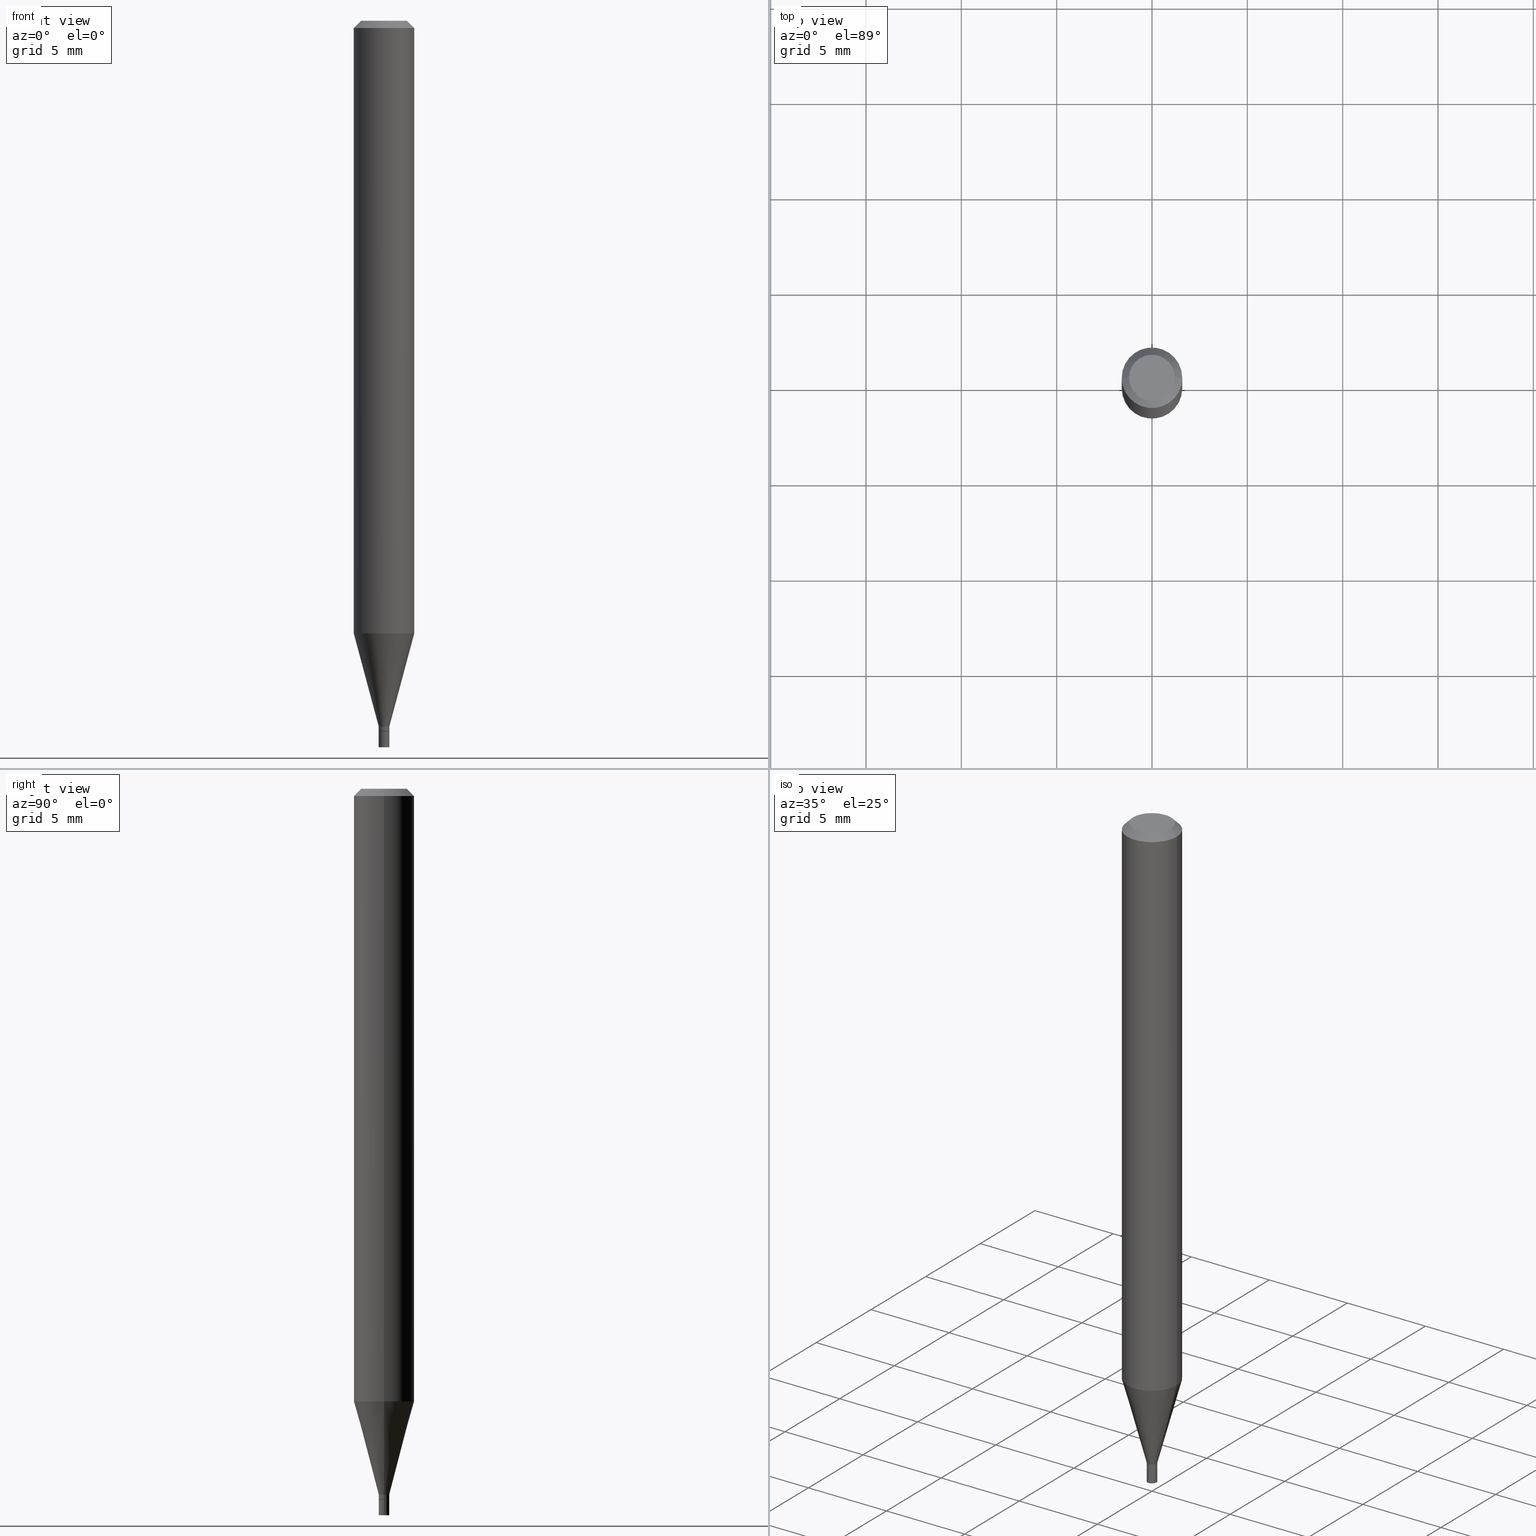
[diagram: canonical four-view strip — front | top / right | iso, engineering-drawing reading convention]
A machine part, canonical four-view strip (front | top / right | iso — engineering-drawing reading convention). The complete STEP part file that produces these views, byte-faithful:
ISO-10303-21;
HEADER;
FILE_DESCRIPTION (( 'STEP AP203' ),
    '1' );
FILE_NAME ('00389.STEP',
    '2024-03-19T21:07:45',
    ( '' ),
    ( '' ),
    'SwSTEP 2.0',
    'SolidWorks 2023',
    '' );
FILE_SCHEMA (( 'CONFIG_CONTROL_DESIGN' ));
ENDSEC;

DATA;
#1 = ADVANCED_FACE ( 'NONE', ( #44 ), #81, .T. ) ;
#2 = CARTESIAN_POINT ( 'NONE',  ( 0.04749999999999999362, -4.035134999187566790E-16, 6.443424916547846258E-16 ) ) ;
#3 = EDGE_LOOP ( 'NONE', ( #17, #55, #447, #283 ) ) ;
#4 = DIRECTION ( 'NONE',  ( 2.438088387897960049E-29, -3.491481338843145188E-15, -1.000000000000000000 ) ) ;
#5 = ORIENTED_EDGE ( 'NONE', *, *, #346, .F. ) ;
#6 = EDGE_CURVE ( 'NONE', #90, #301, #130, .T. ) ;
#7 = AXIS2_PLACEMENT_3D ( 'NONE', #432, #101, #244 ) ;
#8 = AXIS2_PLACEMENT_3D ( 'NONE', #333, #22, #86 ) ;
#9 = CARTESIAN_POINT ( 'NONE',  ( 7.681258945458479888E-17, 0.01099999999999487672, -1.467000000000000304 ) ) ;
#10 = ADVANCED_FACE ( 'NONE', ( #121 ), #53, .T. ) ;
#11 = DIRECTION ( 'NONE',  ( 1.000000000000000000, -6.982962677686265922E-15, 4.876176775795936353E-29 ) ) ;
#12 = ORIENTED_EDGE ( 'NONE', *, *, #199, .F. ) ;
#13 = ORIENTED_EDGE ( 'NONE', *, *, #204, .T. ) ;
#14 = CARTESIAN_POINT ( 'NONE',  ( 0.000000000000000000, 0.000000000000000000, 0.000000000000000000 ) ) ;
#15 = VERTEX_POINT ( 'NONE', #217 ) ;
#16 = DIRECTION ( 'NONE',  ( 1.000000000000000000, -6.982962677686287221E-15, 0.000000000000000000 ) ) ;
#17 = ORIENTED_EDGE ( 'NONE', *, *, #296, .T. ) ;
#18 = CARTESIAN_POINT ( 'NONE',  ( 3.586280004270504012E-29, -5.120257383413474282E-15, -1.466500000000000359 ) ) ;
#19 = VERTEX_POINT ( 'NONE', #316 ) ;
#20 = DATE_AND_TIME ( #340, #256 ) ;
#21 = ORIENTED_EDGE ( 'NONE', *, *, #188, .T. ) ;
#22 = DIRECTION ( 'NONE',  ( 2.438088387897960049E-29, -3.491481338843145188E-15, -1.000000000000000000 ) ) ;
#23 = CIRCLE ( 'NONE', #379, 0.06250000000000000000 ) ;
#24 = ORGANIZATION ( 'UNSPECIFIED', 'UNSPECIFIED', '' ) ;
#25 = ADVANCED_FACE ( 'NONE', ( #183 ), #147, .F. ) ;
#26 = DIRECTION ( 'NONE',  ( 0.000000000000000000, 0.000000000000000000, 1.000000000000000000 ) ) ;
#27 = DIRECTION ( 'NONE',  ( -2.445468806185136597E-29, 3.491481338843145583E-15, 1.000000000000000000 ) ) ;
#28 = EDGE_CURVE ( 'NONE', #19, #367, #149, .T. ) ;
#29 = DIRECTION ( 'NONE',  ( 1.000000000000000000, -6.982962677686245411E-15, 0.000000000000000000 ) ) ;
#30 = VERTEX_POINT ( 'NONE', #180 ) ;
#31 = COORDINATED_UNIVERSAL_TIME_OFFSET ( 5, 0, .BEHIND. ) ;
#32 = DIRECTION ( 'NONE',  ( 0.2588190451025213501, 1.565188264969621968E-15, 0.9659258262890682012 ) ) ;
#33 = ORIENTED_EDGE ( 'NONE', *, *, #250, .T. ) ;
#34 = FACE_OUTER_BOUND ( 'NONE', #52, .T. ) ;
#35 = FACE_OUTER_BOUND ( 'NONE', #272, .T. ) ;
#36 = ORIENTED_EDGE ( 'NONE', *, *, #145, .F. ) ;
#37 = AXIS2_PLACEMENT_3D ( 'NONE', #436, #324, #144 ) ;
#38 = LOCAL_TIME ( 17, 7, 45.00000000000000000, #213 ) ;
#39 = CARTESIAN_POINT ( 'NONE',  ( 0.01049999999999999892, -5.195324232198601302E-15, -1.467000000000000304 ) ) ;
#40 = CARTESIAN_POINT ( 'NONE',  ( -0.01099999999999992130, 7.815970093361046124E-17, -5.410828599280358539E-31 ) ) ;
#41 = LINE ( 'NONE', #39, #418 ) ;
#42 = EDGE_CURVE ( 'NONE', #275, #228, #293, .T. ) ;
#43 = CIRCLE ( 'NONE', #37, 0.06250000000000000000 ) ;
#44 = FACE_OUTER_BOUND ( 'NONE', #174, .T. ) ;
#45 = LINE ( 'NONE', #115, #164 ) ;
#46 = VERTEX_POINT ( 'NONE', #140 ) ;
#47 = DIRECTION ( 'NONE',  ( 1.000000000000000000, -6.982962677686295110E-15, 0.000000000000000000 ) ) ;
#48 = ORIENTED_EDGE ( 'NONE', *, *, #423, .F. ) ;
#49 = PERSON_AND_ORGANIZATION ( #441, #24 ) ;
#50 = LENGTH_MEASURE_WITH_UNIT ( LENGTH_MEASURE( 0.02539999999999999897 ), #305 );
#51 = ORIENTED_EDGE ( 'NONE', *, *, #199, .T. ) ;
#52 = EDGE_LOOP ( 'NONE', ( #36, #61, #51, #338 ) ) ;
#53 = CYLINDRICAL_SURFACE ( 'NONE', #438, 0.06250000000000000000 ) ;
#54 = PERSON_AND_ORGANIZATION_ROLE ( 'design_owner' ) ;
#55 = ORIENTED_EDGE ( 'NONE', *, *, #225, .T. ) ;
#56 = ADVANCED_FACE ( 'NONE', ( #34 ), #322, .T. ) ;
#57 = DIRECTION ( 'NONE',  ( 1.000000000000000000, 0.000000000000000000, 0.000000000000000000 ) ) ;
#58 = MANIFOLD_SOLID_BREP ( 'Body-Move/Copy2[2]', #163 ) ;
#59 = CONICAL_SURFACE ( 'NONE', #172, 0.01049999999999999892, 0.7853981633974718157 ) ;
#60 = CARTESIAN_POINT ( 'NONE',  ( -0.06250000000000000000, 3.840629472727444916E-16, -0.01499999999999999944 ) ) ;
#61 = ORIENTED_EDGE ( 'NONE', *, *, #110, .T. ) ;
#62 = DATE_TIME_ROLE ( 'creation_date' ) ;
#63 = CARTESIAN_POINT ( 'NONE',  ( 3.668203209277704895E-29, -5.237222008264718177E-15, -1.500000000000000222 ) ) ;
#64 = DIRECTION ( 'NONE',  ( 1.000000000000000000, -6.982962677686245411E-15, 0.000000000000000000 ) ) ;
#65 = VECTOR ( 'NONE', #222, 39.37007874015748143 ) ;
#66 = PERSON_AND_ORGANIZATION_ROLE ( 'classification_officer' ) ;
#67 = LINE ( 'NONE', #60, #150 ) ;
#68 = DIRECTION ( 'NONE',  ( -2.445468806185136597E-29, 3.491481338843145583E-15, 1.000000000000000000 ) ) ;
#69 = EDGE_CURVE ( 'NONE', #301, #90, #23, .T. ) ;
#70 = CARTESIAN_POINT ( 'NONE',  ( -0.01099999999999999936, -5.101452865240196680E-15, -1.467000000000000304 ) ) ;
#71 = AXIS2_PLACEMENT_3D ( 'NONE', #382, #466, #94 ) ;
#72 = EDGE_CURVE ( 'NONE', #146, #202, #143, .T. ) ;
#73 = SECURITY_CLASSIFICATION ( '', '', #171 ) ;
#74 = DIRECTION ( 'NONE',  ( -2.445468806185136597E-29, 3.491481338843145583E-15, 1.000000000000000000 ) ) ;
#75 = ORIENTED_EDGE ( 'NONE', *, *, #423, .T. ) ;
#76 = APPROVAL ( #274, 'UNSPECIFIED' ) ;
#77 = CARTESIAN_POINT ( 'NONE',  ( 0.000000000000000000, 0.000000000000000000, 0.000000000000000000 ) ) ;
#78 = DIRECTION ( 'NONE',  ( 1.000000000000000000, -6.982962677686245411E-15, 0.000000000000000000 ) ) ;
#79 = EDGE_LOOP ( 'NONE', ( #403, #21 ) ) ;
#80 = AXIS2_PLACEMENT_3D ( 'NONE', #14, #294, #155 ) ;
#81 = CYLINDRICAL_SURFACE ( 'NONE', #349, 0.01099999999999992130 ) ;
#82 = DIRECTION ( 'NONE',  ( 2.445468806185136597E-29, -3.491481338843145583E-15, -1.000000000000000000 ) ) ;
#83 = VERTEX_POINT ( 'NONE', #389 ) ;
#84 = COORDINATED_UNIVERSAL_TIME_OFFSET ( 5, 0, .BEHIND. ) ;
#85 = EDGE_CURVE ( 'NONE', #19, #30, #67, .T. ) ;
#86 = DIRECTION ( 'NONE',  ( -1.000000000000000000, 6.982962677686265922E-15, -4.876176775795935793E-29 ) ) ;
#87 = CIRCLE ( 'NONE', #439, 0.04749999999999999362 ) ;
#88 = LOCAL_TIME ( 17, 7, 45.00000000000000000, #424 ) ;
#89 = ORIENTED_EDGE ( 'NONE', *, *, #6, .T. ) ;
#90 = VERTEX_POINT ( 'NONE', #344 ) ;
#91 = ADVANCED_FACE ( 'NONE', ( #290 ), #186, .T. ) ;
#92 = CARTESIAN_POINT ( 'NONE',  ( 3.563048050611744147E-29, -5.087088310694462559E-15, -1.457000000000000073 ) ) ;
#93 = DIRECTION ( 'NONE',  ( 1.000000000000000000, -6.982962677686265922E-15, 4.876176775795935793E-29 ) ) ;
#94 = DIRECTION ( 'NONE',  ( 1.000000000000000000, -6.982962677686265922E-15, 4.876176775795936353E-29 ) ) ;
#95 = AXIS2_PLACEMENT_3D ( 'NONE', #428, #317, #64 ) ;
#96 = CALENDAR_DATE ( 2024, 19, 3 ) ;
#97 = DIRECTION ( 'NONE',  ( 1.000000000000000000, -6.982962677686265922E-15, 4.876176775795935793E-29 ) ) ;
#98 = EDGE_LOOP ( 'NONE', ( #192, #190, #179, #434 ) ) ;
#99 = DIRECTION ( 'NONE',  ( -2.445468806185136597E-29, 3.491481338843145583E-15, 1.000000000000000000 ) ) ;
#100 = PERSON_AND_ORGANIZATION_ROLE ( 'creator' ) ;
#101 = DIRECTION ( 'NONE',  ( -2.445468806185136597E-29, 3.491481338843145583E-15, 1.000000000000000000 ) ) ;
#102 = AXIS2_PLACEMENT_3D ( 'NONE', #209, #27, #386 ) ;
#103 = EDGE_CURVE ( 'NONE', #15, #397, #394, .T. ) ;
#104 = DIRECTION ( 'NONE',  ( -2.445468806185136877E-29, 3.491481338843145188E-15, 1.000000000000000000 ) ) ;
#105 = ORIENTED_EDGE ( 'NONE', *, *, #85, .T. ) ;
#106 = FACE_OUTER_BOUND ( 'NONE', #114, .T. ) ;
#107 = ORIENTED_EDGE ( 'NONE', *, *, #453, .F. ) ;
#108 = DIRECTION ( 'NONE',  ( 1.000000000000000000, -6.982962677686295110E-15, 0.000000000000000000 ) ) ;
#109 = VECTOR ( 'NONE', #337, 39.37007874015748143 ) ;
#110 = EDGE_CURVE ( 'NONE', #228, #275, #451, .T. ) ;
#111 = ADVANCED_FACE ( 'NONE', ( #319 ), #239, .T. ) ;
#112 = CARTESIAN_POINT ( 'NONE',  ( 0.000000000000000000, 0.000000000000000000, 0.000000000000000000 ) ) ;
#113 = DIRECTION ( 'NONE',  ( -2.445468806185136597E-29, 3.491481338843145583E-15, 1.000000000000000000 ) ) ;
#114 = EDGE_LOOP ( 'NONE', ( #120, #13, #359, #245 ) ) ;
#115 = CARTESIAN_POINT ( 'NONE',  ( 0.06250000000000000000, -4.811533449433679005E-16, -0.01499999999999999944 ) ) ;
#116 = EDGE_LOOP ( 'NONE', ( #157, #33, #413, #369 ) ) ;
#117 = AXIS2_PLACEMENT_3D ( 'NONE', #265, #433, #362 ) ;
#118 = EDGE_CURVE ( 'NONE', #83, #30, #402, .T. ) ;
#119 = ORIENTED_EDGE ( 'NONE', *, *, #409, .T. ) ;
#120 = ORIENTED_EDGE ( 'NONE', *, *, #188, .F. ) ;
#121 = FACE_OUTER_BOUND ( 'NONE', #368, .T. ) ;
#122 = APPLICATION_PROTOCOL_DEFINITION ( 'international standard', 'config_control_design', 1994, #210 ) ;
#123 = ORIENTED_EDGE ( 'NONE', *, *, #249, .F. ) ;
#124 = EDGE_LOOP ( 'NONE', ( #119, #258 ) ) ;
#125 = AXIS2_PLACEMENT_3D ( 'NONE', #326, #113, #47 ) ;
#126 = DIRECTION ( 'NONE',  ( -2.445468806185136597E-29, 3.491481338843145583E-15, 1.000000000000000000 ) ) ;
#127 = CC_DESIGN_APPROVAL ( #460, ( #73 ) ) ;
#128 = ORIENTED_EDGE ( 'NONE', *, *, #417, .F. ) ;
#129 = LINE ( 'NONE', #415, #109 ) ;
#130 = CIRCLE ( 'NONE', #193, 0.06250000000000000000 ) ;
#131 = DATE_AND_TIME ( #427, #88 ) ;
#132 = VECTOR ( 'NONE', #318, 39.37007874015748143 ) ;
#133 = CARTESIAN_POINT ( 'NONE',  ( 0.01099999999999992130, -5.197069972868022806E-15, -1.466500000000000359 ) ) ;
#134 = CONICAL_SURFACE ( 'NONE', #457, 0.06250000000000000000, 0.7853981633974268517 ) ;
#135 = APPROVAL_DATE_TIME ( #350, #289 ) ;
#136 = CARTESIAN_POINT ( 'NONE',  ( 3.563048050611744147E-29, -5.087088310694462559E-15, -1.457000000000000073 ) ) ;
#137 = DIRECTION ( 'NONE',  ( -0.7071067811865323627, 2.468850131082098105E-15, -0.7071067811865626718 ) ) ;
#138 = EDGE_CURVE ( 'NONE', #202, #90, #430, .T. ) ;
#139 = SHAPE_DEFINITION_REPRESENTATION ( #414, #419 ) ;
#140 = CARTESIAN_POINT ( 'NONE',  ( -0.01099999999999992130, -4.490431422233914869E-15, -1.457000000000000073 ) ) ;
#141 = CIRCLE ( 'NONE', #261, 0.01099999999999999936 ) ;
#142 = APPROVAL_PERSON_ORGANIZATION ( #421, #460, #167 ) ;
#143 = LINE ( 'NONE', #352, #158 ) ;
#144 = DIRECTION ( 'NONE',  ( 1.000000000000000000, -6.982962677686266711E-15, 0.000000000000000000 ) ) ;
#145 = EDGE_CURVE ( 'NONE', #228, #267, #176, .T. ) ;
#146 = VERTEX_POINT ( 'NONE', #133 ) ;
#147 = PLANE ( 'NONE',  #170 ) ;
#148 = DIRECTION ( 'NONE',  ( -1.000000000000000000, 6.982962677686265922E-15, -4.876176775795935793E-29 ) ) ;
#149 = CIRCLE ( 'NONE', #7, 0.04749999999999999362 ) ;
#150 = VECTOR ( 'NONE', #137, 39.37007874015748143 ) ;
#151 = CARTESIAN_POINT ( 'NONE',  ( -0.06250000000000000000, -3.971934234706977480E-15, -1.264799383410203149 ) ) ;
#152 = CARTESIAN_POINT ( 'NONE',  ( 0.01099999999999999936, -5.314034597719267489E-15, -1.500000000000000222 ) ) ;
#153 = DIRECTION ( 'NONE',  ( -2.445468806185136597E-29, 3.491481338843145583E-15, 1.000000000000000000 ) ) ;
#154 = ADVANCED_FACE ( 'NONE', ( #287 ), #59, .T. ) ;
#155 = DIRECTION ( 'NONE',  ( 1.000000000000000000, -6.982962677686266711E-15, 4.876176775795935793E-29 ) ) ;
#156 = ORIENTED_EDGE ( 'NONE', *, *, #110, .F. ) ;
#157 = ORIENTED_EDGE ( 'NONE', *, *, #249, .T. ) ;
#158 = VECTOR ( 'NONE', #211, 39.37007874015748143 ) ;
#159 = APPROVAL_PERSON_ORGANIZATION ( #354, #289, #315 ) ;
#160 = LINE ( 'NONE', #450, #380 ) ;
#161 = PRODUCT_DEFINITION ( 'UNKNOWN', '', #420, #310 ) ;
#162 =( NAMED_UNIT ( * ) PLANE_ANGLE_UNIT ( ) SI_UNIT ( $, .RADIAN. ) );
#163 = CLOSED_SHELL ( 'NONE', ( #353, #410, #241, #10, #221, #111, #320, #91, #393, #25, #154, #1 ) ) ;
#164 = VECTOR ( 'NONE', #231, 39.37007874015748143 ) ;
#165 =( NAMED_UNIT ( * ) SI_UNIT ( $, .STERADIAN. ) SOLID_ANGLE_UNIT ( ) );
#166 = LOCAL_TIME ( 17, 7, 45.00000000000000000, #311 ) ;
#167 = APPROVAL_ROLE ( '' ) ;
#168 = EDGE_CURVE ( 'NONE', #301, #30, #463, .T. ) ;
#169 = DIRECTION ( 'NONE',  ( 2.445468806185136597E-29, -3.491481338843145583E-15, -1.000000000000000000 ) ) ;
#170 = AXIS2_PLACEMENT_3D ( 'NONE', #332, #429, #93 ) ;
#171 = SECURITY_CLASSIFICATION_LEVEL ( 'unclassified' ) ;
#172 = AXIS2_PLACEMENT_3D ( 'NONE', #255, #178, #216 ) ;
#173 = CARTESIAN_POINT ( 'NONE',  ( 3.093027438211846075E-29, -4.416023444557040885E-15, -1.264799383410203149 ) ) ;
#174 = EDGE_LOOP ( 'NONE', ( #373, #229, #405, #107 ) ) ;
#175 = PERSON_AND_ORGANIZATION ( #441, #24 ) ;
#176 = LINE ( 'NONE', #391, #132 ) ;
#177 = CC_DESIGN_PERSON_AND_ORGANIZATION_ASSIGNMENT ( #175, #66, ( #73 ) ) ;
#178 = DIRECTION ( 'NONE',  ( -2.445468806185136597E-29, 3.491481338843145583E-15, 1.000000000000000000 ) ) ;
#179 = ORIENTED_EDGE ( 'NONE', *, *, #138, .T. ) ;
#180 = CARTESIAN_POINT ( 'NONE',  ( -0.06250000000000000000, -1.790108622469781169E-15, -0.01499999999999999944 ) ) ;
#181 = AXIS2_PLACEMENT_3D ( 'NONE', #215, #169, #351 ) ;
#182 = DIRECTION ( 'NONE',  ( -2.445468806185136597E-29, 3.491481338843145583E-15, 1.000000000000000000 ) ) ;
#183 = FACE_OUTER_BOUND ( 'NONE', #299, .T. ) ;
#184 = FACE_OUTER_BOUND ( 'NONE', #3, .T. ) ;
#185 = LINE ( 'NONE', #187, #327 ) ;
#186 = CONICAL_SURFACE ( 'NONE', #181, 0.06250000000000000000, 0.7853981633974268517 ) ;
#187 = CARTESIAN_POINT ( 'NONE',  ( -0.01099999999999992130, -5.008928609760852258E-15, -1.457000000000000073 ) ) ;
#188 = EDGE_CURVE ( 'NONE', #367, #19, #87, .T. ) ;
#189 = FACE_OUTER_BOUND ( 'NONE', #124, .T. ) ;
#190 = ORIENTED_EDGE ( 'NONE', *, *, #453, .T. ) ;
#191 = PERSON_AND_ORGANIZATION_ROLE ( 'creator' ) ;
#192 = ORIENTED_EDGE ( 'NONE', *, *, #225, .F. ) ;
#193 = AXIS2_PLACEMENT_3D ( 'NONE', #270, #153, #196 ) ;
#194 = AXIS2_PLACEMENT_3D ( 'NONE', #77, #182, #11 ) ;
#195 =( GEOMETRIC_REPRESENTATION_CONTEXT ( 3 ) GLOBAL_UNCERTAINTY_ASSIGNED_CONTEXT ( ( #412 ) ) GLOBAL_UNIT_ASSIGNED_CONTEXT ( ( #452, #162, #165 ) ) REPRESENTATION_CONTEXT ( 'NONE', 'WORKASPACE' ) );
#196 = DIRECTION ( 'NONE',  ( 1.000000000000000000, -6.982962677686262766E-15, 0.000000000000000000 ) ) ;
#197 = ADVANCED_FACE ( 'NONE', ( #35 ), #422, .F. ) ;
#198 = EDGE_LOOP ( 'NONE', ( #331, #345, #105, #336 ) ) ;
#199 = EDGE_CURVE ( 'NONE', #275, #444, #247, .T. ) ;
#200 = CARTESIAN_POINT ( 'NONE',  ( 0.000000000000000000, 0.000000000000000000, 0.000000000000000000 ) ) ;
#201 = APPLICATION_PROTOCOL_DEFINITION ( 'international standard', 'config_control_design', 1994, #431 ) ;
#202 = VERTEX_POINT ( 'NONE', #264 ) ;
#203 = DIRECTION ( 'NONE',  ( -2.445468806185136597E-29, 3.491481338843145583E-15, 1.000000000000000000 ) ) ;
#204 = EDGE_CURVE ( 'NONE', #367, #83, #45, .T. ) ;
#205 = AXIS2_PLACEMENT_3D ( 'NONE', #288, #347, #285 ) ;
#206 = CARTESIAN_POINT ( 'NONE',  ( 3.587502738673595692E-29, -5.122003124082895786E-15, -1.467000000000000304 ) ) ;
#207 = ORIENTED_EDGE ( 'NONE', *, *, #69, .T. ) ;
#208 = CC_DESIGN_PERSON_AND_ORGANIZATION_ASSIGNMENT ( #461, #385, ( #420 ) ) ;
#209 = CARTESIAN_POINT ( 'NONE',  ( 3.587502738673595692E-29, -5.122003124082895786E-15, -1.467000000000000304 ) ) ;
#210 = APPLICATION_CONTEXT ( 'configuration controlled 3d designs of mechanical parts and assemblies' ) ;
#211 = DIRECTION ( 'NONE',  ( -2.445468806185136877E-29, 3.491481338843145188E-15, 1.000000000000000000 ) ) ;
#212 = AXIS2_PLACEMENT_3D ( 'NONE', #63, #355, #29 ) ;
#213 = COORDINATED_UNIVERSAL_TIME_OFFSET ( 5, 0, .BEHIND. ) ;
#214 = AXIS2_PLACEMENT_3D ( 'NONE', #260, #223, #78 ) ;
#215 = CARTESIAN_POINT ( 'NONE',  ( 3.668203209277705088E-31, -5.237222008264718399E-17, -0.01499999999999999944 ) ) ;
#216 = DIRECTION ( 'NONE',  ( 1.000000000000000000, -6.982962677686287221E-15, 0.000000000000000000 ) ) ;
#217 = CARTESIAN_POINT ( 'NONE',  ( -0.01049999999999999892, -5.044746909653973604E-15, -1.467000000000000304 ) ) ;
#218 = DIRECTION ( 'NONE',  ( 1.000000000000000000, -6.982962677686267499E-15, 4.852736867747366768E-29 ) ) ;
#219 = FACE_OUTER_BOUND ( 'NONE', #116, .T. ) ;
#220 = AXIS2_PLACEMENT_3D ( 'NONE', #455, #282, #97 ) ;
#221 = ADVANCED_FACE ( 'NONE', ( #184 ), #268, .T. ) ;
#222 = DIRECTION ( 'NONE',  ( -2.445468806185136877E-29, 3.491481338843145188E-15, 1.000000000000000000 ) ) ;
#223 = DIRECTION ( 'NONE',  ( -2.445468806185136597E-29, 3.491481338843145583E-15, 1.000000000000000000 ) ) ;
#224 = DIRECTION ( 'NONE',  ( -2.445468806185136597E-29, 3.491481338843145583E-15, 1.000000000000000000 ) ) ;
#225 = EDGE_CURVE ( 'NONE', #46, #301, #185, .T. ) ;
#226 = VERTEX_POINT ( 'NONE', #361 ) ;
#227 = AXIS2_PLACEMENT_3D ( 'NONE', #9, #4, #148 ) ;
#228 = VERTEX_POINT ( 'NONE', #401 ) ;
#229 = ORIENTED_EDGE ( 'NONE', *, *, #417, .T. ) ;
#230 = CARTESIAN_POINT ( 'NONE',  ( 0.000000000000000000, 0.000000000000000000, 0.000000000000000000 ) ) ;
#231 = DIRECTION ( 'NONE',  ( 0.7071067811865323627, -7.319954787623203981E-15, -0.7071067811865626718 ) ) ;
#232 = ORIENTED_EDGE ( 'NONE', *, *, #42, .F. ) ;
#233 = EDGE_LOOP ( 'NONE', ( #446, #407, #329, #12 ) ) ;
#234 = CARTESIAN_POINT ( 'NONE',  ( 0.01099999999999999936, -5.198815713537444309E-15, -1.467000000000000304 ) ) ;
#235 = ORIENTED_EDGE ( 'NONE', *, *, #103, .F. ) ;
#236 = EDGE_CURVE ( 'NONE', #267, #444, #387, .T. ) ;
#237 = FACE_OUTER_BOUND ( 'NONE', #263, .T. ) ;
#238 = EDGE_LOOP ( 'NONE', ( #400, #449, #300, #128 ) ) ;
#239 = CONICAL_SURFACE ( 'NONE', #374, 0.01099999999999992130, 0.2617993877991500740 ) ;
#240 = DIRECTION ( 'NONE',  ( 1.000000000000000000, -6.982962677686295110E-15, 0.000000000000000000 ) ) ;
#241 = ADVANCED_FACE ( 'NONE', ( #106 ), #134, .T. ) ;
#242 = VECTOR ( 'NONE', #392, 39.37007874015748143 ) ;
#243 = CIRCLE ( 'NONE', #365, 0.01099999999999992130 ) ;
#244 = DIRECTION ( 'NONE',  ( 1.000000000000000000, -6.982962677686267499E-15, 4.852736867747366768E-29 ) ) ;
#245 = ORIENTED_EDGE ( 'NONE', *, *, #85, .F. ) ;
#246 = CALENDAR_DATE ( 2024, 19, 3 ) ;
#247 = LINE ( 'NONE', #384, #65 ) ;
#248 = ORIENTED_EDGE ( 'NONE', *, *, #360, .F. ) ;
#249 = EDGE_CURVE ( 'NONE', #146, #226, #295, .T. ) ;
#250 = EDGE_CURVE ( 'NONE', #226, #46, #363, .T. ) ;
#251 = DIRECTION ( 'NONE',  ( 1.000000000000000000, -6.982962677686266711E-15, 4.876176775795935793E-29 ) ) ;
#252 = CARTESIAN_POINT ( 'NONE',  ( 0.01099999999999992130, -5.163900900149011871E-15, -1.457000000000000073 ) ) ;
#253 = APPROVAL_DATE_TIME ( #381, #460 ) ;
#254 = AXIS2_PLACEMENT_3D ( 'NONE', #266, #74, #108 ) ;
#255 = CARTESIAN_POINT ( 'NONE',  ( 3.587502738673595692E-29, -5.122003124082895786E-15, -1.467000000000000304 ) ) ;
#256 = LOCAL_TIME ( 17, 7, 45.00000000000000000, #84 ) ;
#257 = CARTESIAN_POINT ( 'NONE',  ( -1.575719463841376315E-44, 2.249709785436367094E-30, 6.443424916547820620E-16 ) ) ;
#258 = ORIENTED_EDGE ( 'NONE', *, *, #236, .T. ) ;
#259 = DIRECTION ( 'NONE',  ( -1.000000000000000000, 6.982962677686266711E-15, 0.000000000000000000 ) ) ;
#260 = CARTESIAN_POINT ( 'NONE',  ( 3.587502738673595692E-29, -5.122003124082895786E-15, -1.467000000000000304 ) ) ;
#261 = AXIS2_PLACEMENT_3D ( 'NONE', #206, #278, #406 ) ;
#262 = EDGE_LOOP ( 'NONE', ( #426, #207, #75, #341 ) ) ;
#263 = EDGE_LOOP ( 'NONE', ( #435, #456, #123, #248 ) ) ;
#264 = CARTESIAN_POINT ( 'NONE',  ( 0.01099999999999992130, -5.163900900149011871E-15, -1.457000000000000073 ) ) ;
#265 = CARTESIAN_POINT ( 'NONE',  ( 3.587502738673595692E-29, -5.122003124082895786E-15, -1.467000000000000304 ) ) ;
#266 = CARTESIAN_POINT ( 'NONE',  ( 3.563048050611744147E-29, -5.087088310694462559E-15, -1.457000000000000073 ) ) ;
#267 = VERTEX_POINT ( 'NONE', #70 ) ;
#268 = CONICAL_SURFACE ( 'NONE', #254, 0.01099999999999992130, 0.2617993877991500740 ) ;
#269 = AXIS2_PLACEMENT_3D ( 'NONE', #378, #26, #57 ) ;
#270 = CARTESIAN_POINT ( 'NONE',  ( 3.093027438211846075E-29, -4.416023444557040885E-15, -1.264799383410203149 ) ) ;
#271 = PLANE ( 'NONE',  #8 ) ;
#272 = EDGE_LOOP ( 'NONE', ( #232, #156 ) ) ;
#273 = ADVANCED_FACE ( 'NONE', ( #443 ), #297, .T. ) ;
#274 = APPROVAL_STATUS ( 'not_yet_approved' ) ;
#275 = VERTEX_POINT ( 'NONE', #152 ) ;
#276 = VECTOR ( 'NONE', #32, 39.37007874015747433 ) ;
#277 = CC_DESIGN_DATE_AND_TIME_ASSIGNMENT ( #284, #62, ( #161 ) ) ;
#278 = DIRECTION ( 'NONE',  ( -2.445468806185136597E-29, 3.491481338843145583E-15, 1.000000000000000000 ) ) ;
#279 = APPROVAL_STATUS ( 'not_yet_approved' ) ;
#280 = CLOSED_SHELL ( 'NONE', ( #273, #197, #56, #306 ) ) ;
#281 = CIRCLE ( 'NONE', #314, 0.01099999999999992130 ) ;
#282 = DIRECTION ( 'NONE',  ( -2.438088387897960049E-29, 3.491481338843145188E-15, 1.000000000000000000 ) ) ;
#283 = ORIENTED_EDGE ( 'NONE', *, *, #138, .F. ) ;
#284 = DATE_AND_TIME ( #246, #38 ) ;
#285 = DIRECTION ( 'NONE',  ( 1.000000000000000000, -6.982962677686266711E-15, 0.000000000000000000 ) ) ;
#286 = PERSON_AND_ORGANIZATION ( #441, #24 ) ;
#287 = FACE_OUTER_BOUND ( 'NONE', #238, .T. ) ;
#288 = CARTESIAN_POINT ( 'NONE',  ( 3.668203209277705088E-31, -5.237222008264718399E-17, -0.01499999999999999944 ) ) ;
#289 = APPROVAL ( #279, 'UNSPECIFIED' ) ;
#290 = FACE_OUTER_BOUND ( 'NONE', #198, .T. ) ;
#291 = FACE_OUTER_BOUND ( 'NONE', #79, .T. ) ;
#292 = EDGE_CURVE ( 'NONE', #30, #83, #43, .T. ) ;
#293 = CIRCLE ( 'NONE', #212, 0.01099999999999999936 ) ;
#294 = DIRECTION ( 'NONE',  ( -2.445468806185136597E-29, 3.491481338843145583E-15, 1.000000000000000000 ) ) ;
#295 = CIRCLE ( 'NONE', #321, 0.01099999999999992130 ) ;
#296 = EDGE_CURVE ( 'NONE', #202, #46, #308, .T. ) ;
#297 = CYLINDRICAL_SURFACE ( 'NONE', #194, 0.01099999999999999936 ) ;
#298 = CARTESIAN_POINT ( 'NONE',  ( 3.586280004270504012E-29, -5.120257383413474282E-15, -1.466500000000000359 ) ) ;
#299 = EDGE_LOOP ( 'NONE', ( #5, #235 ) ) ;
#300 = ORIENTED_EDGE ( 'NONE', *, *, #360, .T. ) ;
#301 = VERTEX_POINT ( 'NONE', #151 ) ;
#302 = DIMENSIONAL_EXPONENTS ( 1.000000000000000000, 0.000000000000000000, 0.000000000000000000, 0.000000000000000000, 0.000000000000000000, 0.000000000000000000, 0.000000000000000000 ) ;
#303 = CC_DESIGN_SECURITY_CLASSIFICATION ( #73, ( #420 ) ) ;
#304 = CARTESIAN_POINT ( 'NONE',  ( 3.587502738673595692E-29, -5.122003124082895786E-15, -1.467000000000000304 ) ) ;
#305 =( LENGTH_UNIT ( ) NAMED_UNIT ( * ) SI_UNIT ( $, .METRE. ) );
#306 = ADVANCED_FACE ( 'NONE', ( #189 ), #330, .F. ) ;
#307 = APPROVAL_DATE_TIME ( #20, #76 ) ;
#308 = CIRCLE ( 'NONE', #125, 0.01099999999999992130 ) ;
#309 = PRODUCT_RELATED_PRODUCT_CATEGORY ( 'detail', '', ( #408 ) ) ;
#310 = DESIGN_CONTEXT ( 'detailed design', #210, 'design' ) ;
#311 = COORDINATED_UNIVERSAL_TIME_OFFSET ( 5, 0, .BEHIND. ) ;
#312 = CC_DESIGN_PERSON_AND_ORGANIZATION_ASSIGNMENT ( #286, #100, ( #420 ) ) ;
#313 = CARTESIAN_POINT ( 'NONE',  ( -0.06250000000000000000, 4.440892098500626162E-16, -3.074334431409316114E-30 ) ) ;
#314 = AXIS2_PLACEMENT_3D ( 'NONE', #18, #126, #343 ) ;
#315 = APPROVAL_ROLE ( '' ) ;
#316 = CARTESIAN_POINT ( 'NONE',  ( -0.04749999999999999362, 3.578768372314221846E-16, 6.443424916547796954E-16 ) ) ;
#317 = DIRECTION ( 'NONE',  ( -2.445468806185136597E-29, 3.491481338843145583E-15, 1.000000000000000000 ) ) ;
#318 = DIRECTION ( 'NONE',  ( -2.445468806185136877E-29, 3.491481338843145188E-15, 1.000000000000000000 ) ) ;
#319 = FACE_OUTER_BOUND ( 'NONE', #98, .T. ) ;
#320 = ADVANCED_FACE ( 'NONE', ( #442 ), #396, .T. ) ;
#321 = AXIS2_PLACEMENT_3D ( 'NONE', #298, #224, #366 ) ;
#322 = CYLINDRICAL_SURFACE ( 'NONE', #71, 0.01099999999999999936 ) ;
#323 = DIRECTION ( 'NONE',  ( 0.7071067811865642261, -2.468850131082431399E-15, 0.7071067811865309194 ) ) ;
#324 = DIRECTION ( 'NONE',  ( -2.445468806185136597E-29, 3.491481338843145583E-15, 1.000000000000000000 ) ) ;
#325 = CC_DESIGN_DATE_AND_TIME_ASSIGNMENT ( #131, #454, ( #73 ) ) ;
#326 = CARTESIAN_POINT ( 'NONE',  ( 3.563048050611744147E-29, -5.087088310694462559E-15, -1.457000000000000073 ) ) ;
#327 = VECTOR ( 'NONE', #399, 39.37007874015747433 ) ;
#328 = CARTESIAN_POINT ( 'NONE',  ( 3.668203209277705088E-31, -5.237222008264718399E-17, -0.01499999999999999944 ) ) ;
#329 = ORIENTED_EDGE ( 'NONE', *, *, #409, .F. ) ;
#330 = PLANE ( 'NONE',  #227 ) ;
#331 = ORIENTED_EDGE ( 'NONE', *, *, #204, .F. ) ;
#332 = CARTESIAN_POINT ( 'NONE',  ( 3.587502738673595692E-29, -5.122003124082895786E-15, -1.467000000000000304 ) ) ;
#333 = CARTESIAN_POINT ( 'NONE',  ( 3.316907271900976096E-16, 0.04749999999999999362, 1.563258822323416346E-16 ) ) ;
#334 = AXIS2_PLACEMENT_3D ( 'NONE', #304, #372, #16 ) ;
#335 = CONICAL_SURFACE ( 'NONE', #334, 0.01049999999999999892, 0.7853981633974718157 ) ;
#336 = ORIENTED_EDGE ( 'NONE', *, *, #292, .T. ) ;
#337 = DIRECTION ( 'NONE',  ( -2.445468806185136877E-29, 3.491481338843145188E-15, 1.000000000000000000 ) ) ;
#338 = ORIENTED_EDGE ( 'NONE', *, *, #236, .F. ) ;
#339 = DIRECTION ( 'NONE',  ( -2.445468806185136597E-29, 3.491481338843145583E-15, 1.000000000000000000 ) ) ;
#340 = CALENDAR_DATE ( 2024, 19, 3 ) ;
#341 = ORIENTED_EDGE ( 'NONE', *, *, #292, .F. ) ;
#342 = CARTESIAN_POINT ( 'NONE',  ( 0.01049999999999999892, -5.195324232198601302E-15, -1.467000000000000304 ) ) ;
#343 = DIRECTION ( 'NONE',  ( 1.000000000000000000, -6.982962677686295110E-15, 0.000000000000000000 ) ) ;
#344 = CARTESIAN_POINT ( 'NONE',  ( 0.06250000000000000000, -4.852458611912431766E-15, -1.264799383410203149 ) ) ;
#345 = ORIENTED_EDGE ( 'NONE', *, *, #28, .F. ) ;
#346 = EDGE_CURVE ( 'NONE', #397, #15, #464, .T. ) ;
#347 = DIRECTION ( 'NONE',  ( -2.445468806185136597E-29, 3.491481338843145583E-15, 1.000000000000000000 ) ) ;
#348 = ORIENTED_EDGE ( 'NONE', *, *, #168, .T. ) ;
#349 = AXIS2_PLACEMENT_3D ( 'NONE', #230, #445, #448 ) ;
#350 = DATE_AND_TIME ( #96, #458 ) ;
#351 = DIRECTION ( 'NONE',  ( -1.000000000000000000, 6.982962677686266711E-15, 0.000000000000000000 ) ) ;
#352 = CARTESIAN_POINT ( 'NONE',  ( 0.01099999999999992130, -7.681258945454838802E-17, 5.363794453375491117E-31 ) ) ;
#353 = ADVANCED_FACE ( 'NONE', ( #219 ), #440, .T. ) ;
#354 = PERSON_AND_ORGANIZATION ( #441, #24 ) ;
#355 = DIRECTION ( 'NONE',  ( -2.445468806185136597E-29, 3.491481338843145583E-15, 1.000000000000000000 ) ) ;
#356 = AXIS2_PLACEMENT_3D ( 'NONE', #112, #357, #398 ) ;
#357 = DIRECTION ( 'NONE',  ( -2.445468806185136597E-29, 3.491481338843145583E-15, 1.000000000000000000 ) ) ;
#358 = APPROVAL_PERSON_ORGANIZATION ( #404, #76, #411 ) ;
#359 = ORIENTED_EDGE ( 'NONE', *, *, #118, .T. ) ;
#360 = EDGE_CURVE ( 'NONE', #397, #146, #41, .T. ) ;
#361 = CARTESIAN_POINT ( 'NONE',  ( -0.01099999999999992130, -5.042097682479863192E-15, -1.466500000000000359 ) ) ;
#362 = DIRECTION ( 'NONE',  ( 1.000000000000000000, -6.982962677686287221E-15, 0.000000000000000000 ) ) ;
#363 = LINE ( 'NONE', #40, #242 ) ;
#364 = VECTOR ( 'NONE', #104, 39.37007874015748143 ) ;
#365 = AXIS2_PLACEMENT_3D ( 'NONE', #92, #203, #240 ) ;
#366 = DIRECTION ( 'NONE',  ( 1.000000000000000000, -6.982962677686295110E-15, 0.000000000000000000 ) ) ;
#367 = VERTEX_POINT ( 'NONE', #2 ) ;
#368 = EDGE_LOOP ( 'NONE', ( #89, #348, #377, #48 ) ) ;
#369 = ORIENTED_EDGE ( 'NONE', *, *, #72, .F. ) ;
#370 = CC_DESIGN_PERSON_AND_ORGANIZATION_ASSIGNMENT ( #49, #191, ( #161 ) ) ;
#371 = MECHANICAL_CONTEXT ( 'NONE', #431, 'mechanical' ) ;
#372 = DIRECTION ( 'NONE',  ( -2.445468806185136597E-29, 3.491481338843145583E-15, 1.000000000000000000 ) ) ;
#373 = ORIENTED_EDGE ( 'NONE', *, *, #250, .F. ) ;
#374 = AXIS2_PLACEMENT_3D ( 'NONE', #136, #99, #462 ) ;
#375 = MANIFOLD_SOLID_BREP ( 'Body-Move/Copy2[1]', #280 ) ;
#376 = PERSON_AND_ORGANIZATION ( #441, #24 ) ;
#377 = ORIENTED_EDGE ( 'NONE', *, *, #118, .F. ) ;
#378 = CARTESIAN_POINT ( 'NONE',  ( 0.000000000000000000, 0.000000000000000000, 0.000000000000000000 ) ) ;
#379 = AXIS2_PLACEMENT_3D ( 'NONE', #173, #459, #425 ) ;
#380 = VECTOR ( 'NONE', #416, 39.37007874015748143 ) ;
#381 = DATE_AND_TIME ( #390, #166 ) ;
#382 = CARTESIAN_POINT ( 'NONE',  ( 0.000000000000000000, 0.000000000000000000, 0.000000000000000000 ) ) ;
#383 = APPROVAL_STATUS ( 'not_yet_approved' ) ;
#384 = CARTESIAN_POINT ( 'NONE',  ( 0.01099999999999999936, -7.681258945454891804E-17, 5.363794453375529652E-31 ) ) ;
#385 = PERSON_AND_ORGANIZATION_ROLE ( 'design_supplier' ) ;
#386 = DIRECTION ( 'NONE',  ( 1.000000000000000000, -6.982962677686287221E-15, 0.000000000000000000 ) ) ;
#387 = CIRCLE ( 'NONE', #214, 0.01099999999999999936 ) ;
#388 = CC_DESIGN_PERSON_AND_ORGANIZATION_ASSIGNMENT ( #376, #54, ( #408 ) ) ;
#389 = CARTESIAN_POINT ( 'NONE',  ( 0.06250000000000000000, -4.888073874380388472E-16, -0.01499999999999999944 ) ) ;
#390 = CALENDAR_DATE ( 2024, 19, 3 ) ;
#391 = CARTESIAN_POINT ( 'NONE',  ( -0.01099999999999999936, 7.815970093361101591E-17, -5.410828599280396199E-31 ) ) ;
#392 = DIRECTION ( 'NONE',  ( -2.445468806185136877E-29, 3.491481338843145188E-15, 1.000000000000000000 ) ) ;
#393 = ADVANCED_FACE ( 'NONE', ( #291 ), #271, .F. ) ;
#394 = CIRCLE ( 'NONE', #102, 0.01049999999999999892 ) ;
#395 = CC_DESIGN_APPROVAL ( #76, ( #161 ) ) ;
#396 = CYLINDRICAL_SURFACE ( 'NONE', #80, 0.06250000000000000000 ) ;
#397 = VERTEX_POINT ( 'NONE', #342 ) ;
#398 = DIRECTION ( 'NONE',  ( 1.000000000000000000, -6.982962677686266711E-15, 4.876176775795935793E-29 ) ) ;
#399 = DIRECTION ( 'NONE',  ( -0.2588190451025213501, 5.211531920934551042E-15, 0.9659258262890682012 ) ) ;
#400 = ORIENTED_EDGE ( 'NONE', *, *, #437, .F. ) ;
#401 = CARTESIAN_POINT ( 'NONE',  ( -0.01099999999999999936, -5.101452865240196680E-15, -1.500000000000000222 ) ) ;
#402 = CIRCLE ( 'NONE', #205, 0.06250000000000000000 ) ;
#403 = ORIENTED_EDGE ( 'NONE', *, *, #28, .T. ) ;
#404 = PERSON_AND_ORGANIZATION ( #441, #24 ) ;
#405 = ORIENTED_EDGE ( 'NONE', *, *, #72, .T. ) ;
#406 = DIRECTION ( 'NONE',  ( 1.000000000000000000, -6.982962677686245411E-15, 0.000000000000000000 ) ) ;
#407 = ORIENTED_EDGE ( 'NONE', *, *, #145, .T. ) ;
#408 = PRODUCT ( '00389', '00389', '', ( #371 ) ) ;
#409 = EDGE_CURVE ( 'NONE', #444, #267, #141, .T. ) ;
#410 = ADVANCED_FACE ( 'NONE', ( #237 ), #335, .T. ) ;
#411 = APPROVAL_ROLE ( '' ) ;
#412 = UNCERTAINTY_MEASURE_WITH_UNIT (LENGTH_MEASURE( 1.000000000000000082E-05 ), #452, 'distance_accuracy_value', 'NONE');
#413 = ORIENTED_EDGE ( 'NONE', *, *, #296, .F. ) ;
#414 = PRODUCT_DEFINITION_SHAPE ( 'NONE', 'NONE',  #161 ) ;
#415 = CARTESIAN_POINT ( 'NONE',  ( 0.06250000000000000000, -4.364351673553916694E-16, 3.047610484872459871E-30 ) ) ;
#416 = DIRECTION ( 'NONE',  ( -0.7071067811865642261, 7.493145998870414114E-15, 0.7071067811865309194 ) ) ;
#417 = EDGE_CURVE ( 'NONE', #226, #146, #281, .T. ) ;
#418 = VECTOR ( 'NONE', #323, 39.37007874015748143 ) ;
#419 = ADVANCED_BREP_SHAPE_REPRESENTATION ( '00389', ( #375, #58, #269 ), #195 ) ;
#420 = PRODUCT_DEFINITION_FORMATION_WITH_SPECIFIED_SOURCE ( 'ANY', '', #408, .NOT_KNOWN. ) ;
#421 = PERSON_AND_ORGANIZATION ( #441, #24 ) ;
#422 = PLANE ( 'NONE',  #220 ) ;
#423 = EDGE_CURVE ( 'NONE', #90, #83, #129, .T. ) ;
#424 = COORDINATED_UNIVERSAL_TIME_OFFSET ( 5, 0, .BEHIND. ) ;
#425 = DIRECTION ( 'NONE',  ( 1.000000000000000000, -6.982962677686262766E-15, 0.000000000000000000 ) ) ;
#426 = ORIENTED_EDGE ( 'NONE', *, *, #168, .F. ) ;
#427 = CALENDAR_DATE ( 2024, 19, 3 ) ;
#428 = CARTESIAN_POINT ( 'NONE',  ( 3.668203209277704895E-29, -5.237222008264718177E-15, -1.500000000000000222 ) ) ;
#429 = DIRECTION ( 'NONE',  ( -2.438088387897960049E-29, 3.491481338843145188E-15, 1.000000000000000000 ) ) ;
#430 = LINE ( 'NONE', #252, #276 ) ;
#431 = APPLICATION_CONTEXT ( 'configuration controlled 3d designs of mechanical parts and assemblies' ) ;
#432 = CARTESIAN_POINT ( 'NONE',  ( -1.575719463841376315E-44, 2.249709785436367094E-30, 6.443424916547820620E-16 ) ) ;
#433 = DIRECTION ( 'NONE',  ( -2.445468806185136597E-29, 3.491481338843145583E-15, 1.000000000000000000 ) ) ;
#434 = ORIENTED_EDGE ( 'NONE', *, *, #69, .F. ) ;
#435 = ORIENTED_EDGE ( 'NONE', *, *, #346, .T. ) ;
#436 = CARTESIAN_POINT ( 'NONE',  ( 3.668203209277705088E-31, -5.237222008264718399E-17, -0.01499999999999999944 ) ) ;
#437 = EDGE_CURVE ( 'NONE', #15, #226, #160, .T. ) ;
#438 = AXIS2_PLACEMENT_3D ( 'NONE', #200, #339, #251 ) ;
#439 = AXIS2_PLACEMENT_3D ( 'NONE', #257, #68, #218 ) ;
#440 = CYLINDRICAL_SURFACE ( 'NONE', #356, 0.01099999999999992130 ) ;
#441 = PERSON ( 'UNSPECIFIED', 'UNSPECIFIED', 'UNSPECIFIED', ('UNSPECIFIED'), ('UNSPECIFIED'), ('UNSPECIFIED') ) ;
#442 = FACE_OUTER_BOUND ( 'NONE', #262, .T. ) ;
#443 = FACE_OUTER_BOUND ( 'NONE', #233, .T. ) ;
#444 = VERTEX_POINT ( 'NONE', #234 ) ;
#445 = DIRECTION ( 'NONE',  ( -2.445468806185136597E-29, 3.491481338843145583E-15, 1.000000000000000000 ) ) ;
#446 = ORIENTED_EDGE ( 'NONE', *, *, #42, .T. ) ;
#447 = ORIENTED_EDGE ( 'NONE', *, *, #6, .F. ) ;
#448 = DIRECTION ( 'NONE',  ( 1.000000000000000000, -6.982962677686266711E-15, 4.876176775795935793E-29 ) ) ;
#449 = ORIENTED_EDGE ( 'NONE', *, *, #103, .T. ) ;
#450 = CARTESIAN_POINT ( 'NONE',  ( -0.01049999999999999892, -5.047396136828084806E-15, -1.467000000000000304 ) ) ;
#451 = CIRCLE ( 'NONE', #95, 0.01099999999999999936 ) ;
#452 =( CONVERSION_BASED_UNIT ( 'INCH', #50 ) LENGTH_UNIT ( ) NAMED_UNIT ( #302 ) );
#453 = EDGE_CURVE ( 'NONE', #46, #202, #243, .T. ) ;
#454 = DATE_TIME_ROLE ( 'classification_date' ) ;
#455 = CARTESIAN_POINT ( 'NONE',  ( 3.576687321579069994E-29, -5.368277968210015545E-15, -1.500000000000000222 ) ) ;
#456 = ORIENTED_EDGE ( 'NONE', *, *, #437, .T. ) ;
#457 = AXIS2_PLACEMENT_3D ( 'NONE', #328, #82, #259 ) ;
#458 = LOCAL_TIME ( 17, 7, 45.00000000000000000, #31 ) ;
#459 = DIRECTION ( 'NONE',  ( -2.445468806185136597E-29, 3.491481338843145583E-15, 1.000000000000000000 ) ) ;
#460 = APPROVAL ( #383, 'UNSPECIFIED' ) ;
#461 = PERSON_AND_ORGANIZATION ( #441, #24 ) ;
#462 = DIRECTION ( 'NONE',  ( 1.000000000000000000, -6.982962677686295110E-15, 0.000000000000000000 ) ) ;
#463 = LINE ( 'NONE', #313, #364 ) ;
#464 = CIRCLE ( 'NONE', #117, 0.01049999999999999892 ) ;
#465 = CC_DESIGN_APPROVAL ( #289, ( #420 ) ) ;
#466 = DIRECTION ( 'NONE',  ( -2.445468806185136597E-29, 3.491481338843145583E-15, 1.000000000000000000 ) ) ;
ENDSEC;
END-ISO-10303-21;
